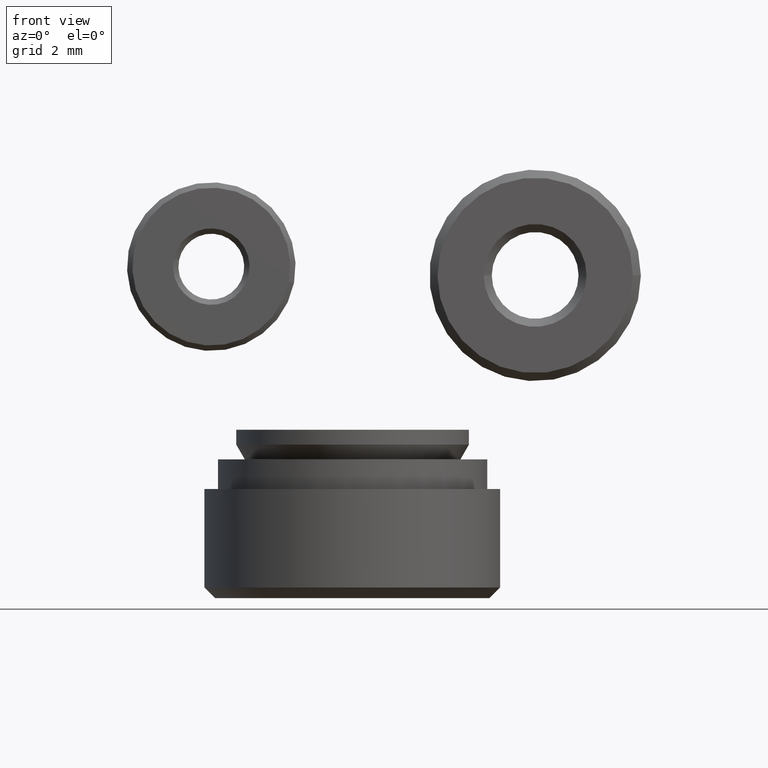
[diagram: clean part render]
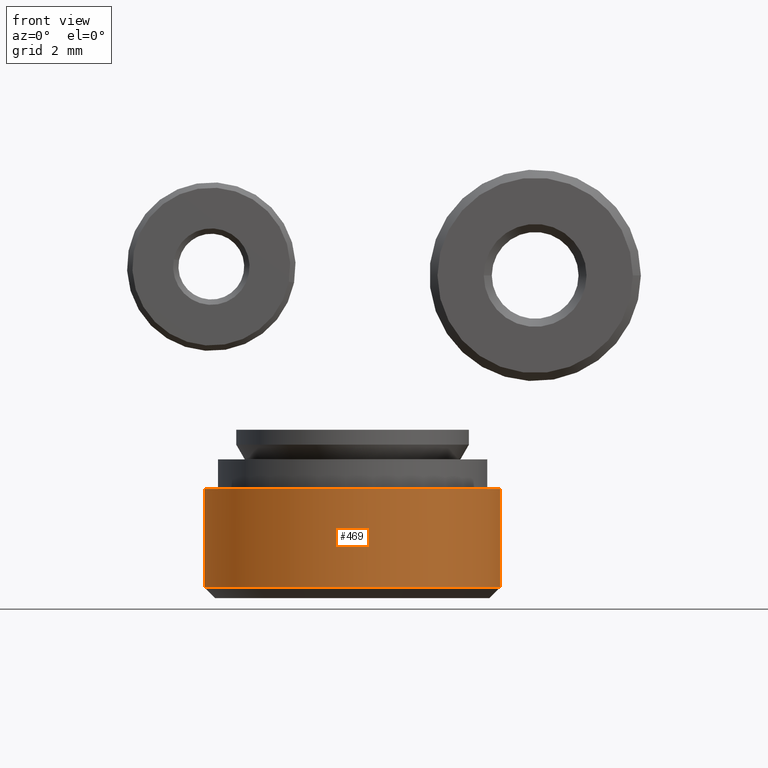
[diagram: same view with one face highlighted and labeled with its STEP entity id]
A machine part, front view. The second image highlights one B-rep face of the part: STEP entity #469.
In plain terms, the highlighted cylindrical surface (bore or boss wall) has radius 5.525 mm, axis along (-0, -0, -1).
Its self-contained STEP definition (entity closure, byte-faithful):
#60=CYLINDRICAL_SURFACE('',#522,5.525);
#76=FACE_BOUND('',#166,.T.);
#118=FACE_OUTER_BOUND('',#165,.T.);
#165=EDGE_LOOP('',(#375));
#166=EDGE_LOOP('',(#376));
#243=CIRCLE('',#518,5.525);
#246=CIRCLE('',#523,5.525);
#285=VERTEX_POINT('',#795);
#288=VERTEX_POINT('',#803);
#327=EDGE_CURVE('',#285,#285,#243,.T.);
#330=EDGE_CURVE('',#288,#288,#246,.T.);
#375=ORIENTED_EDGE('',*,*,#330,.T.);
#376=ORIENTED_EDGE('',*,*,#327,.F.);
#469=ADVANCED_FACE('',(#118,#76),#60,.T.);
#518=AXIS2_PLACEMENT_3D('',#796,#618,#619);
#522=AXIS2_PLACEMENT_3D('',#802,#626,#627);
#523=AXIS2_PLACEMENT_3D('',#804,#628,#629);
#618=DIRECTION('center_axis',(0.,0.,-1.));
#619=DIRECTION('ref_axis',(1.,0.,0.));
#626=DIRECTION('center_axis',(0.,0.,-1.));
#627=DIRECTION('ref_axis',(-1.,0.,0.));
#628=DIRECTION('center_axis',(0.,0.,-1.));
#629=DIRECTION('ref_axis',(-1.,0.,0.));
#795=CARTESIAN_POINT('',(5.525,-6.76617356528913E-16,0.4));
#796=CARTESIAN_POINT('Origin',(0.,0.,0.4));
#802=CARTESIAN_POINT('Origin',(0.,0.,2.04));
#803=CARTESIAN_POINT('',(5.525,-6.76617356528913E-16,4.08));
#804=CARTESIAN_POINT('Origin',(0.,0.,4.08));